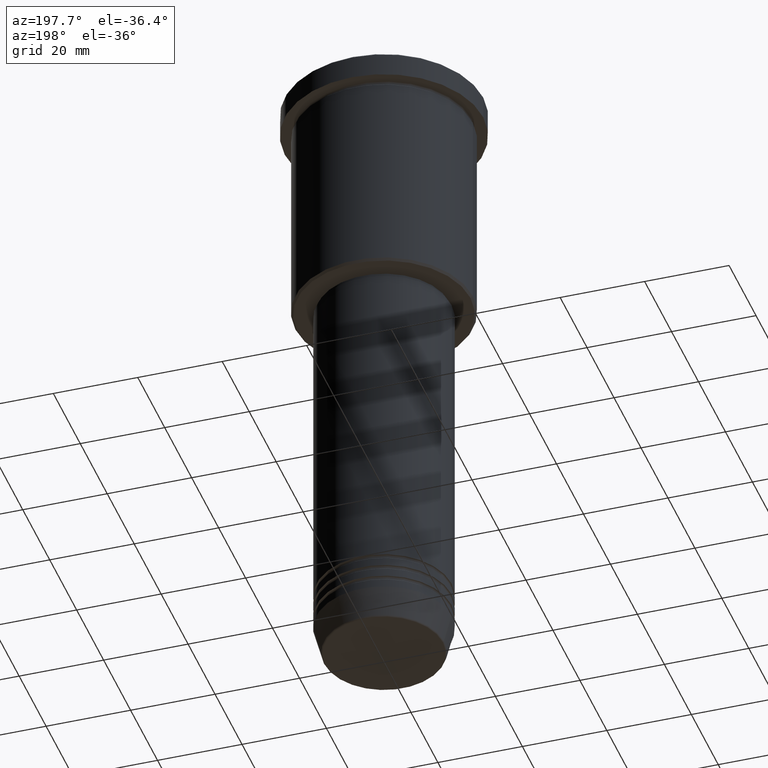
[diagram: clean part render]
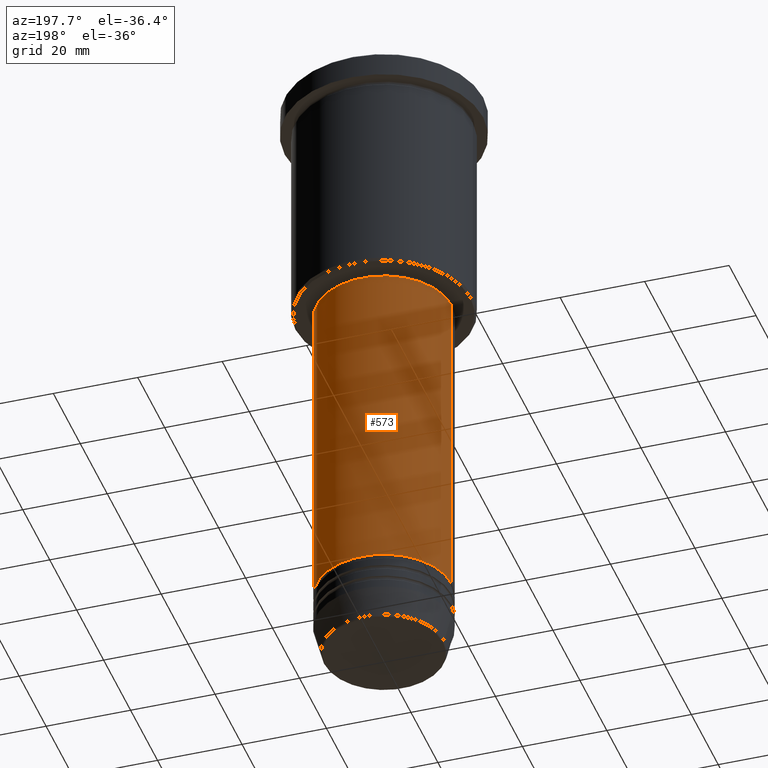
[diagram: same view with one face highlighted and labeled with its STEP entity id]
A machine part, auxiliary view. The second image highlights one B-rep face of the part: STEP entity #573.
In plain terms, the highlighted cylindrical surface (partial cylindrical patch) has radius 16 mm, axis along (-0, -0, 1).
Its self-contained STEP definition (entity closure, byte-faithful):
#6 = LINE ( 'NONE', #550, #707 ) ;
#53 = CARTESIAN_POINT ( 'NONE',  ( -16.00000000000000000, 1.959434878635765131E-15, -134.9999999999999716 ) ) ;
#67 = AXIS2_PLACEMENT_3D ( 'NONE', #271, #674, #823 ) ;
#88 = DIRECTION ( 'NONE',  ( -0.000000000000000000, -0.000000000000000000, 1.000000000000000000 ) ) ;
#110 = EDGE_LOOP ( 'NONE', ( #376, #598, #220, #175 ) ) ;
#143 = CARTESIAN_POINT ( 'NONE',  ( 0.000000000000000000, 0.000000000000000000, -57.00000000000001421 ) ) ;
#175 = ORIENTED_EDGE ( 'NONE', *, *, #393, .F. ) ;
#207 = VERTEX_POINT ( 'NONE', #819 ) ;
#220 = ORIENTED_EDGE ( 'NONE', *, *, #536, .F. ) ;
#271 = CARTESIAN_POINT ( 'NONE',  ( 0.000000000000000000, 0.000000000000000000, -134.9999999999999716 ) ) ;
#323 = AXIS2_PLACEMENT_3D ( 'NONE', #778, #694, #1128 ) ;
#376 = ORIENTED_EDGE ( 'NONE', *, *, #805, .T. ) ;
#383 = LINE ( 'NONE', #569, #782 ) ;
#393 = EDGE_CURVE ( 'NONE', #1040, #207, #383, .T. ) ;
#536 = EDGE_CURVE ( 'NONE', #207, #1062, #1069, .T. ) ;
#550 = CARTESIAN_POINT ( 'NONE',  ( -16.00000000000000000, 1.959434878635765131E-15, 0.000000000000000000 ) ) ;
#569 = CARTESIAN_POINT ( 'NONE',  ( 16.00000000000000000, 0.000000000000000000, 0.000000000000000000 ) ) ;
#573 = ADVANCED_FACE ( 'NONE', ( #859 ), #687, .T. ) ;
#586 = CIRCLE ( 'NONE', #67, 16.00000000000000000 ) ;
#598 = ORIENTED_EDGE ( 'NONE', *, *, #939, .T. ) ;
#599 = DIRECTION ( 'NONE',  ( -0.000000000000000000, -0.000000000000000000, 1.000000000000000000 ) ) ;
#638 = VERTEX_POINT ( 'NONE', #53 ) ;
#674 = DIRECTION ( 'NONE',  ( -0.000000000000000000, -0.000000000000000000, 1.000000000000000000 ) ) ;
#687 = CYLINDRICAL_SURFACE ( 'NONE', #323, 16.00000000000000000 ) ;
#694 = DIRECTION ( 'NONE',  ( -0.000000000000000000, -0.000000000000000000, 1.000000000000000000 ) ) ;
#707 = VECTOR ( 'NONE', #88, 1000.000000000000000 ) ;
#746 = DIRECTION ( 'NONE',  ( -0.000000000000000000, -0.000000000000000000, 1.000000000000000000 ) ) ;
#758 = CARTESIAN_POINT ( 'NONE',  ( -16.00000000000000000, 1.959434878635765131E-15, -57.00000000000001421 ) ) ;
#778 = CARTESIAN_POINT ( 'NONE',  ( 0.000000000000000000, 0.000000000000000000, 0.000000000000000000 ) ) ;
#782 = VECTOR ( 'NONE', #746, 1000.000000000000000 ) ;
#805 = EDGE_CURVE ( 'NONE', #1040, #638, #586, .T. ) ;
#815 = AXIS2_PLACEMENT_3D ( 'NONE', #143, #599, #1131 ) ;
#819 = CARTESIAN_POINT ( 'NONE',  ( 16.00000000000000000, 0.000000000000000000, -57.00000000000001421 ) ) ;
#823 = DIRECTION ( 'NONE',  ( 1.000000000000000000, 0.000000000000000000, 0.000000000000000000 ) ) ;
#859 = FACE_OUTER_BOUND ( 'NONE', #110, .T. ) ;
#939 = EDGE_CURVE ( 'NONE', #638, #1062, #6, .T. ) ;
#1040 = VERTEX_POINT ( 'NONE', #1119 ) ;
#1062 = VERTEX_POINT ( 'NONE', #758 ) ;
#1069 = CIRCLE ( 'NONE', #815, 16.00000000000000000 ) ;
#1119 = CARTESIAN_POINT ( 'NONE',  ( 16.00000000000000000, 0.000000000000000000, -134.9999999999999716 ) ) ;
#1128 = DIRECTION ( 'NONE',  ( 1.000000000000000000, 0.000000000000000000, 0.000000000000000000 ) ) ;
#1131 = DIRECTION ( 'NONE',  ( 1.000000000000000000, 0.000000000000000000, 0.000000000000000000 ) ) ;